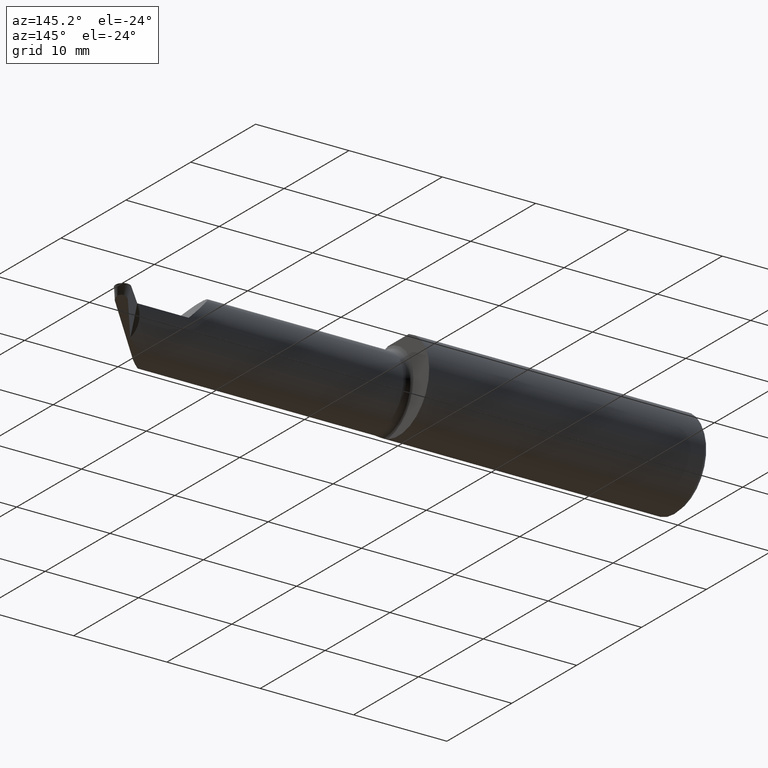
[diagram: clean part render]
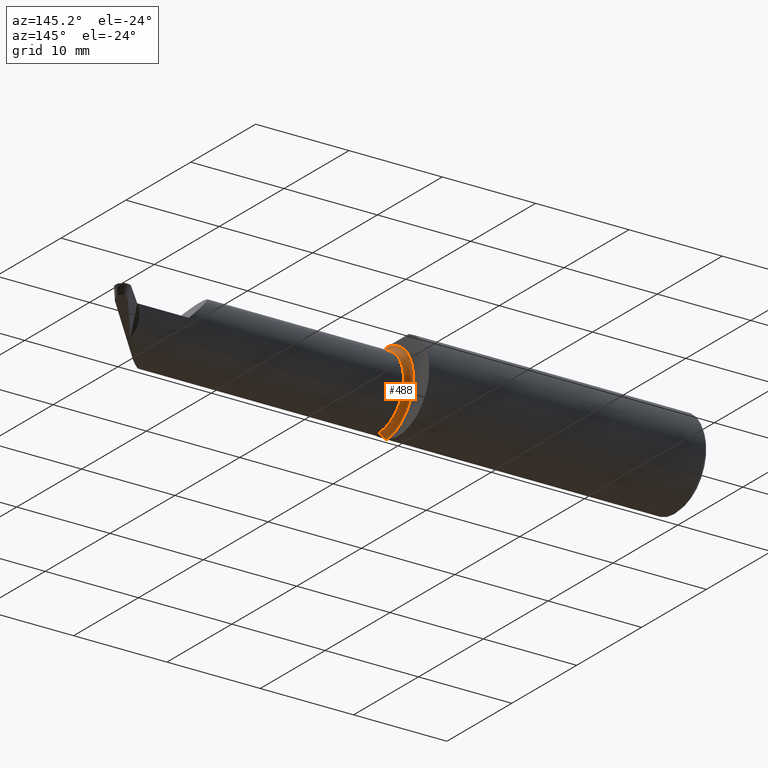
[diagram: same view with one face highlighted and labeled with its STEP entity id]
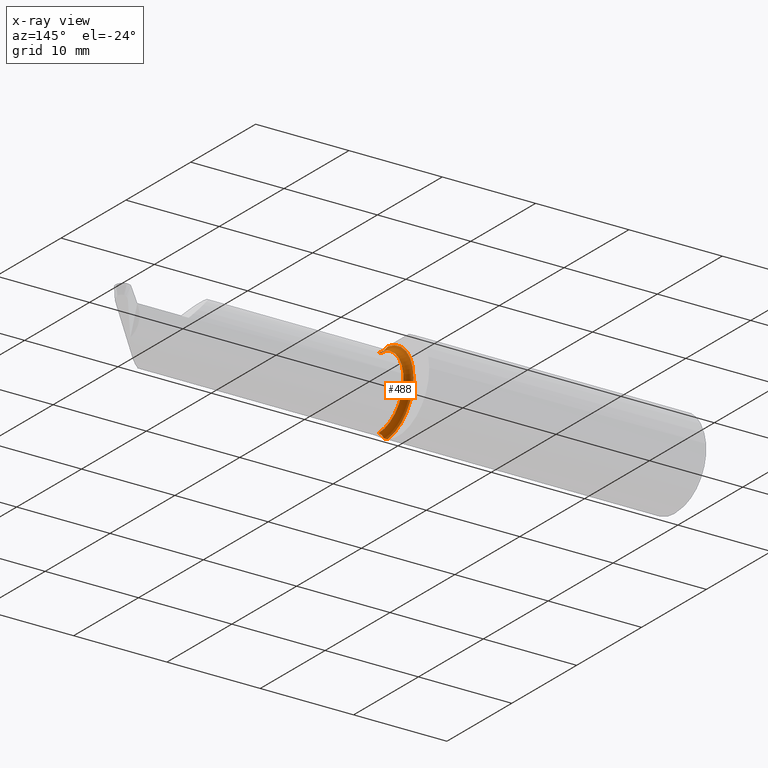
[diagram: x-ray of the same camera — body ghosted, the highlighted face saturated]
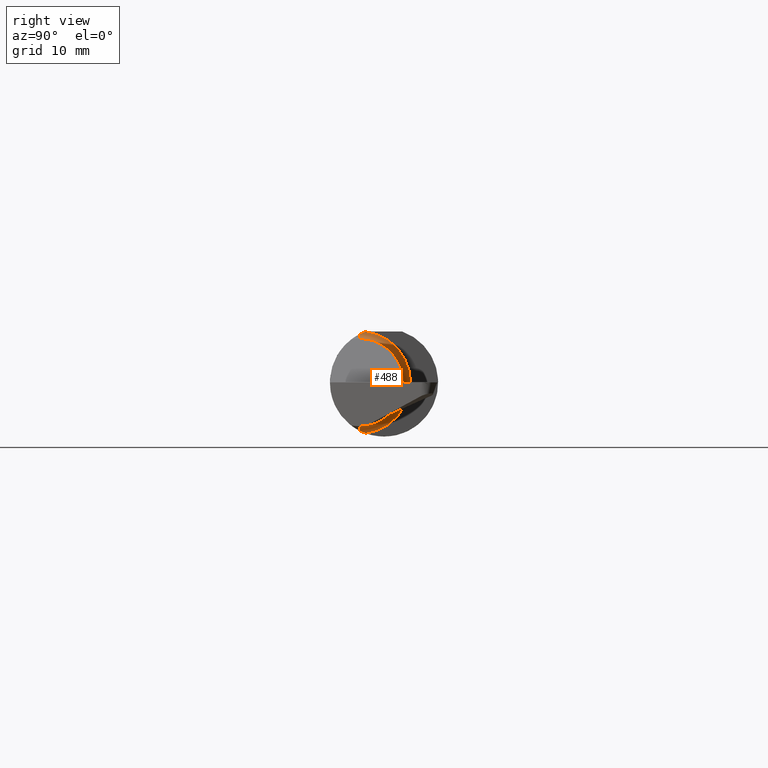
[diagram: same view with one face highlighted and labeled with its STEP entity id]
A machine part, auxiliary view. The second image highlights one B-rep face of the part: STEP entity #488.
The next image is the same camera in x-ray: the body ghosted, the highlighted face saturated — about 0% of this face is hidden behind the body in this view.
A second angle (right view) of the same face is appended — the face is thin or edge-on in the first view.
In plain terms, the highlighted toroidal blend (fillet) surface has major radius 4.4958 mm and minor (blend) radius 0.635 mm.
Its self-contained STEP definition (entity closure, byte-faithful):
#12 = CARTESIAN_POINT ( 'NONE',  ( 1.203999999999999959, -0.08534999999999996756, -0.1770000000000002682 ) ) ;
#27 = VERTEX_POINT ( 'NONE', #60 ) ;
#60 = CARTESIAN_POINT ( 'NONE',  ( 1.203999999999999959, -0.08534999999999996756, -0.1520000000000002460 ) ) ;
#63 = VERTEX_POINT ( 'NONE', #298 ) ;
#102 = DIRECTION ( 'NONE',  ( -1.000000000000000000, -0.000000000000000000, -0.000000000000000000 ) ) ;
#111 = EDGE_CURVE ( 'NONE', #439, #377, #638, .T. ) ;
#113 = CARTESIAN_POINT ( 'NONE',  ( 1.203999999999999959, -0.08534999999999998144, 0.1770000000000002682 ) ) ;
#138 = AXIS2_PLACEMENT_3D ( 'NONE', #113, #431, #618 ) ;
#145 = DIRECTION ( 'NONE',  ( -0.000000000000000000, 1.000000000000000000, 1.224646799147353207E-16 ) ) ;
#151 = ORIENTED_EDGE ( 'NONE', *, *, #111, .F. ) ;
#153 = CARTESIAN_POINT ( 'NONE',  ( 1.178999999999999604, -0.07190536322760422705, 0.1731690544253196018 ) ) ;
#163 = DIRECTION ( 'NONE',  ( 0.000000000000000000, 0.000000000000000000, 1.000000000000000000 ) ) ;
#167 = FACE_OUTER_BOUND ( 'NONE', #375, .T. ) ;
#170 = AXIS2_PLACEMENT_3D ( 'NONE', #727, #102, #343 ) ;
#197 = EDGE_CURVE ( 'NONE', #63, #321, #604, .T. ) ;
#205 = CIRCLE ( 'NONE', #643, 0.02500000000000000486 ) ;
#232 = CARTESIAN_POINT ( 'NONE',  ( 1.203999999999999959, -0.08534999999999998144, 0.1520000000000002460 ) ) ;
#241 = AXIS2_PLACEMENT_3D ( 'NONE', #609, #784, #163 ) ;
#260 = EDGE_CURVE ( 'NONE', #803, #377, #581, .T. ) ;
#278 = EDGE_CURVE ( 'NONE', #439, #63, #322, .T. ) ;
#297 = TOROIDAL_SURFACE ( 'NONE', #170, 0.1770000000000002682, 0.02500000000000001180 ) ;
#298 = CARTESIAN_POINT ( 'NONE',  ( 1.181184626225752821, -0.08535000000000000919, 0.1667794951425384253 ) ) ;
#302 = CARTESIAN_POINT ( 'NONE',  ( 1.178999999999999826, -0.06476652021089572553, -0.1757990908957484666 ) ) ;
#314 = ORIENTED_EDGE ( 'NONE', *, *, #478, .T. ) ;
#321 = VERTEX_POINT ( 'NONE', #232 ) ;
#322 = B_SPLINE_CURVE_WITH_KNOTS ( 'NONE', 3,
 ( #417, #153, #792, #654 ),
 .UNSPECIFIED., .F., .F.,
 ( 4, 4 ),
 ( 4.102419206624730480E-05, 0.0006141256517407904384 ),
 .UNSPECIFIED. ) ;
#343 = DIRECTION ( 'NONE',  ( 0.000000000000000000, 0.000000000000000000, 1.000000000000000000 ) ) ;
#362 = CARTESIAN_POINT ( 'NONE',  ( 1.181184626225752821, -0.08534999999999998144, -0.1667794951425384531 ) ) ;
#371 = DIRECTION ( 'NONE',  ( 0.000000000000000000, 0.000000000000000000, 1.000000000000000000 ) ) ;
#373 = AXIS2_PLACEMENT_3D ( 'NONE', #440, #634, #371 ) ;
#375 = EDGE_LOOP ( 'NONE', ( #763, #512, #151, #646, #707, #314 ) ) ;
#377 = VERTEX_POINT ( 'NONE', #483 ) ;
#417 = CARTESIAN_POINT ( 'NONE',  ( 1.178999999999999826, -0.06476652021089572553, 0.1757990908957484666 ) ) ;
#431 = DIRECTION ( 'NONE',  ( 0.000000000000000000, -1.000000000000000000, 0.000000000000000000 ) ) ;
#439 = VERTEX_POINT ( 'NONE', #628 ) ;
#440 = CARTESIAN_POINT ( 'NONE',  ( 1.203999999999999959, -0.08534999999999998144, 0.000000000000000000 ) ) ;
#478 = EDGE_CURVE ( 'NONE', #321, #27, #520, .T. ) ;
#483 = CARTESIAN_POINT ( 'NONE',  ( 1.178999999999999826, -0.06476652021089572553, -0.1757990908957484666 ) ) ;
#488 = ADVANCED_FACE ( 'NONE', ( #167 ), #297, .F. ) ;
#511 = CARTESIAN_POINT ( 'NONE',  ( 1.181184626225752821, -0.08534999999999998144, -0.1667794951425384531 ) ) ;
#512 = ORIENTED_EDGE ( 'NONE', *, *, #260, .T. ) ;
#520 = CIRCLE ( 'NONE', #373, 0.1520000000000002460 ) ;
#571 = DIRECTION ( 'NONE',  ( 0.000000000000000000, 0.000000000000000000, 1.000000000000000000 ) ) ;
#581 = B_SPLINE_CURVE_WITH_KNOTS ( 'NONE', 3,
 ( #362, #621, #680, #302 ),
 .UNSPECIFIED., .F., .F.,
 ( 4, 4 ),
 ( 0.001081723733566325668, 0.001661700673542926190 ),
 .UNSPECIFIED. ) ;
#604 = CIRCLE ( 'NONE', #138, 0.02500000000000000486 ) ;
#609 = CARTESIAN_POINT ( 'NONE',  ( 1.178999999999999826, -0.08534999999999998144, 0.000000000000000000 ) ) ;
#618 = DIRECTION ( 'NONE',  ( 0.000000000000000000, 0.000000000000000000, -1.000000000000000000 ) ) ;
#621 = CARTESIAN_POINT ( 'NONE',  ( 1.179680673000416125, -0.07878962450278807761, -0.1701367906434541610 ) ) ;
#628 = CARTESIAN_POINT ( 'NONE',  ( 1.178999999999999826, -0.06476652021089572553, 0.1757990908957484666 ) ) ;
#634 = DIRECTION ( 'NONE',  ( -1.000000000000000000, -0.000000000000000000, -0.000000000000000000 ) ) ;
#638 = CIRCLE ( 'NONE', #241, 0.1770000000000002682 ) ;
#643 = AXIS2_PLACEMENT_3D ( 'NONE', #12, #145, #571 ) ;
#646 = ORIENTED_EDGE ( 'NONE', *, *, #278, .T. ) ;
#654 = CARTESIAN_POINT ( 'NONE',  ( 1.181184626225752821, -0.08535000000000000919, 0.1667794951425384253 ) ) ;
#680 = CARTESIAN_POINT ( 'NONE',  ( 1.178999999999999826, -0.07189143372580465707, -0.1731741862229598805 ) ) ;
#707 = ORIENTED_EDGE ( 'NONE', *, *, #197, .T. ) ;
#727 = CARTESIAN_POINT ( 'NONE',  ( 1.203999999999999959, -0.08534999999999998144, 0.000000000000000000 ) ) ;
#763 = ORIENTED_EDGE ( 'NONE', *, *, #787, .F. ) ;
#784 = DIRECTION ( 'NONE',  ( -1.000000000000000000, -0.000000000000000000, -0.000000000000000000 ) ) ;
#787 = EDGE_CURVE ( 'NONE', #803, #27, #205, .T. ) ;
#792 = CARTESIAN_POINT ( 'NONE',  ( 1.179675599206764236, -0.07876749217114938084, 0.1701481169429116536 ) ) ;
#803 = VERTEX_POINT ( 'NONE', #511 ) ;